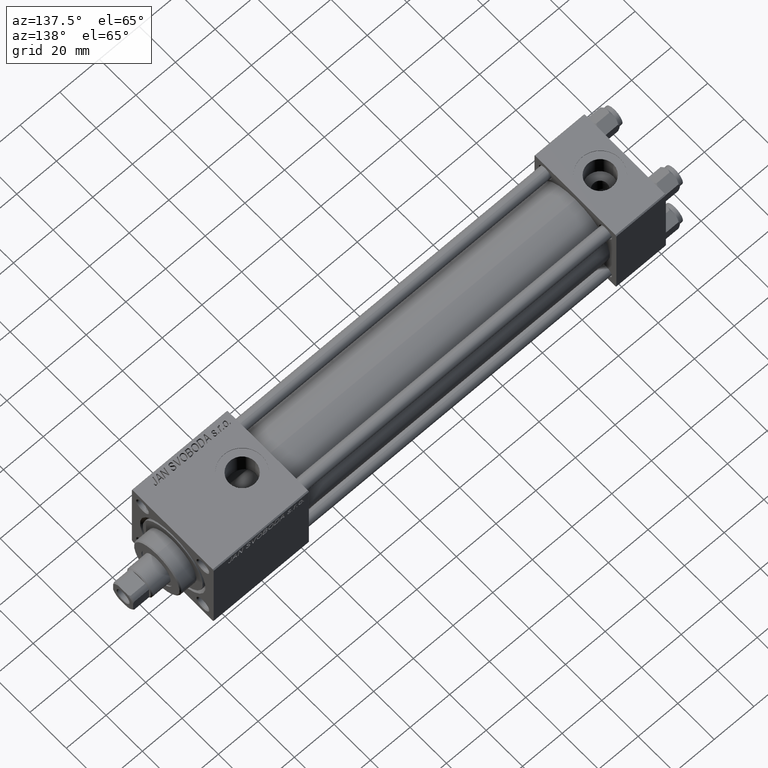
[diagram: clean part render]
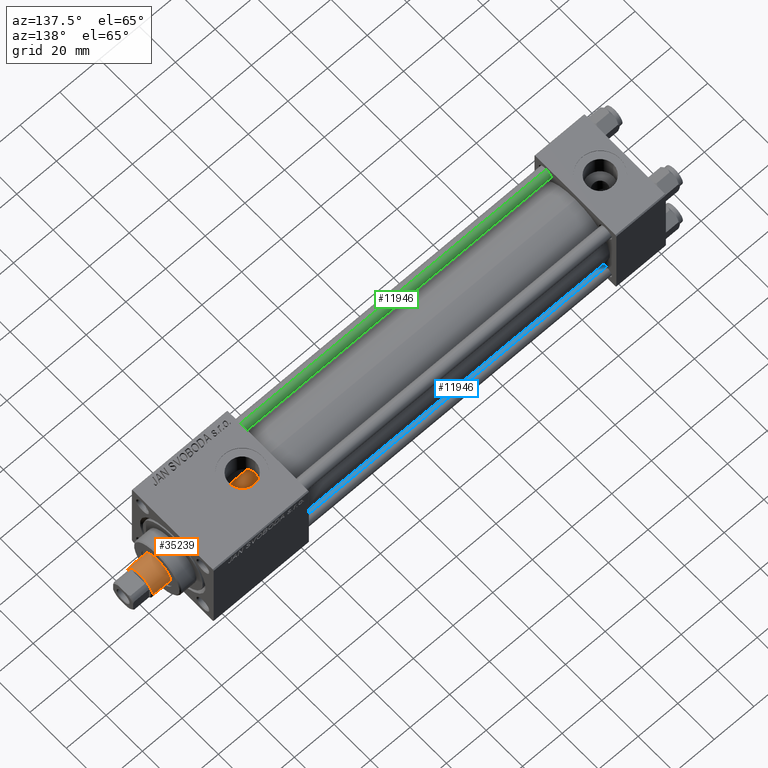
[diagram: same view with three faces highlighted in distinct colors, each labeled with its STEP entity id]
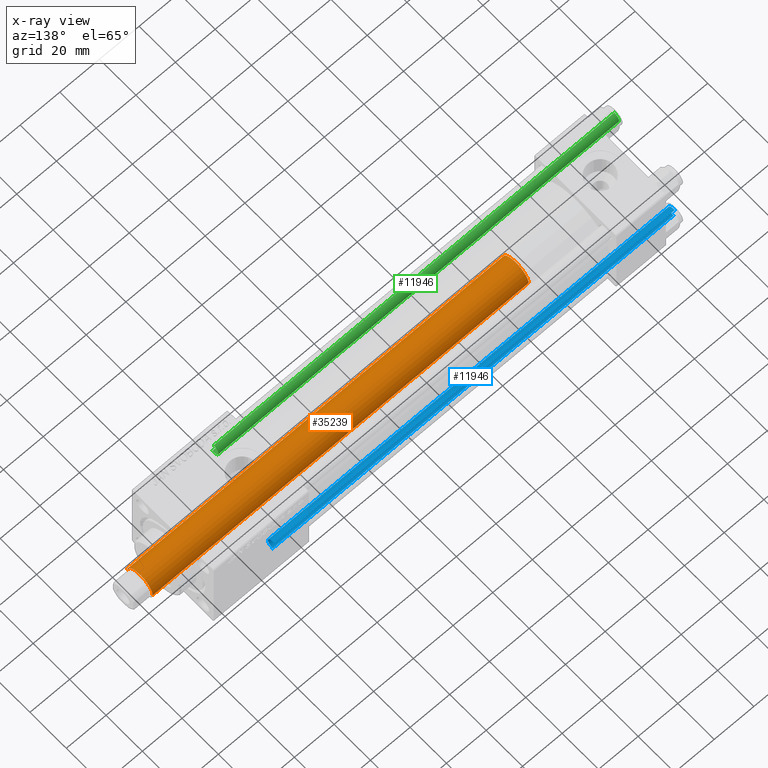
[diagram: x-ray of the same camera — body ghosted, the three highlighted faces saturated]
A machine part, auxiliary view with three faces highlighted in distinct colors.
The next image is the same camera in x-ray (body ghosted, the three faces saturated) — at least one of them is partly hidden behind the body in this view.
Their STEP definitions:

[orange] entity #35239 — the highlighted cylindrical surface (edge-blend (fillet) strip) has radius 7 mm, axis along (-1, 0, 0).
#272 = FACE_OUTER_BOUND ( 'NONE', #42955, .T. ) ;
#811 = DIRECTION ( 'NONE',  ( -0.000000000000000000, -0.000000000000000000, -1.000000000000000000 ) ) ;
#1330 = AXIS2_PLACEMENT_3D ( 'NONE', #31945, #811, #28512 ) ;
#3040 = EDGE_CURVE ( 'NONE', #14487, #27648, #37460, .T. ) ;
#3292 = VECTOR ( 'NONE', #19312, 1000.000000000000000 ) ;
#3755 = CARTESIAN_POINT ( 'NONE',  ( 7.000000000000000000, 8.572527594031473190E-16, 220.0000000000000000 ) ) ;
#4395 = ORIENTED_EDGE ( 'NONE', *, *, #3040, .T. ) ;
#4634 = EDGE_CURVE ( 'NONE', #14112, #14487, #25937, .T. ) ;
#4850 = DIRECTION ( 'NONE',  ( -0.000000000000000000, -0.000000000000000000, -1.000000000000000000 ) ) ;
#4862 = VERTEX_POINT ( 'NONE', #5301 ) ;
#5301 = CARTESIAN_POINT ( 'NONE',  ( 7.000000000000000000, 8.572527594031473190E-16, 219.4999999999999716 ) ) ;
#6480 = DIRECTION ( 'NONE',  ( 1.000000000000000000, 0.000000000000000000, 0.000000000000000000 ) ) ;
#9952 = CARTESIAN_POINT ( 'NONE',  ( 0.000000000000000000, 0.000000000000000000, 30.00000000000000000 ) ) ;
#10004 = CARTESIAN_POINT ( 'NONE',  ( 7.000000000000000000, 8.572527594031473190E-16, 30.00000000000000000 ) ) ;
#11616 = ORIENTED_EDGE ( 'NONE', *, *, #48052, .F. ) ;
#13826 = AXIS2_PLACEMENT_3D ( 'NONE', #9952, #33710, #26046 ) ;
#14112 = VERTEX_POINT ( 'NONE', #32553 ) ;
#14487 = VERTEX_POINT ( 'NONE', #24558 ) ;
#16093 = ORIENTED_EDGE ( 'NONE', *, *, #4634, .T. ) ;
#19312 = DIRECTION ( 'NONE',  ( -0.000000000000000000, -0.000000000000000000, -1.000000000000000000 ) ) ;
#23629 = CIRCLE ( 'NONE', #38838, 7.000000000000000000 ) ;
#24558 = CARTESIAN_POINT ( 'NONE',  ( -7.000000000000000000, 0.000000000000000000, 30.00000000000000000 ) ) ;
#25937 = LINE ( 'NONE', #42028, #34105 ) ;
#25971 = EDGE_CURVE ( 'NONE', #4862, #14112, #23629, .T. ) ;
#26046 = DIRECTION ( 'NONE',  ( 1.000000000000000000, 0.000000000000000000, 0.000000000000000000 ) ) ;
#27298 = DIRECTION ( 'NONE',  ( 0.000000000000000000, 0.000000000000000000, -1.000000000000000000 ) ) ;
#27648 = VERTEX_POINT ( 'NONE', #10004 ) ;
#28512 = DIRECTION ( 'NONE',  ( -1.000000000000000000, 0.000000000000000000, 0.000000000000000000 ) ) ;
#31729 = LINE ( 'NONE', #3755, #3292 ) ;
#31945 = CARTESIAN_POINT ( 'NONE',  ( 0.000000000000000000, 0.000000000000000000, 220.0000000000000000 ) ) ;
#32553 = CARTESIAN_POINT ( 'NONE',  ( -7.000000000000000000, 0.000000000000000000, 219.4999999999999716 ) ) ;
#33710 = DIRECTION ( 'NONE',  ( 0.000000000000000000, 0.000000000000000000, 1.000000000000000000 ) ) ;
#34105 = VECTOR ( 'NONE', #4850, 1000.000000000000000 ) ;
#34714 = CARTESIAN_POINT ( 'NONE',  ( 0.000000000000000000, 0.000000000000000000, 219.4999999999999716 ) ) ;
#35239 = ADVANCED_FACE ( 'NONE', ( #272 ), #36970, .T. ) ;
#36970 = CYLINDRICAL_SURFACE ( 'NONE', #1330, 7.000000000000000000 ) ;
#37460 = CIRCLE ( 'NONE', #13826, 7.000000000000000000 ) ;
#38146 = ORIENTED_EDGE ( 'NONE', *, *, #25971, .T. ) ;
#38838 = AXIS2_PLACEMENT_3D ( 'NONE', #34714, #27298, #6480 ) ;
#42028 = CARTESIAN_POINT ( 'NONE',  ( -7.000000000000000000, 0.000000000000000000, 220.0000000000000000 ) ) ;
#42955 = EDGE_LOOP ( 'NONE', ( #11616, #38146, #16093, #4395 ) ) ;
#48052 = EDGE_CURVE ( 'NONE', #4862, #27648, #31729, .T. ) ;

[blue] entity #11946 — the highlighted cylindrical surface (edge-blend (fillet) strip) has radius 3 mm, axis along (1, -0, 0).
#386 = EDGE_CURVE ( 'NONE', #22499, #6661, #30112, .T. ) ;
#1240 = ORIENTED_EDGE ( 'NONE', *, *, #386, .F. ) ;
#1415 = AXIS2_PLACEMENT_3D ( 'NONE', #24226, #27928, #47474 ) ;
#3016 = ORIENTED_EDGE ( 'NONE', *, *, #41166, .T. ) ;
#5114 = CARTESIAN_POINT ( 'NONE',  ( -3.000000000000000444, 0.000000000000000000, 0.5000000000001114664 ) ) ;
#6661 = VERTEX_POINT ( 'NONE', #13414 ) ;
#6662 = DIRECTION ( 'NONE',  ( 0.000000000000000000, 0.000000000000000000, -1.000000000000000000 ) ) ;
#7156 = DIRECTION ( 'NONE',  ( 1.000000000000000000, 0.000000000000000000, 0.000000000000000000 ) ) ;
#11068 = DIRECTION ( 'NONE',  ( -0.000000000000000000, -0.000000000000000000, -1.000000000000000000 ) ) ;
#11946 = ADVANCED_FACE ( 'NONE', ( #52204 ), #12340, .T. ) ;
#12340 = CYLINDRICAL_SURFACE ( 'NONE', #1415, 3.000000000000000444 ) ;
#12487 = EDGE_CURVE ( 'NONE', #22499, #21866, #14888, .T. ) ;
#13216 = AXIS2_PLACEMENT_3D ( 'NONE', #23519, #6662, #22745 ) ;
#13414 = CARTESIAN_POINT ( 'NONE',  ( 3.000000000000000444, 3.673940397442059868E-16, 0.5000000000001114664 ) ) ;
#13914 = VECTOR ( 'NONE', #27429, 1000.000000000000000 ) ;
#14247 = CARTESIAN_POINT ( 'NONE',  ( 3.000000000000000444, 3.673940397442059868E-16, 203.0000000000000000 ) ) ;
#14291 = DIRECTION ( 'NONE',  ( -0.000000000000000000, -0.000000000000000000, 1.000000000000000000 ) ) ;
#14888 = CIRCLE ( 'NONE', #13216, 3.000000000000000444 ) ;
#16085 = CARTESIAN_POINT ( 'NONE',  ( -3.000000000000000444, 0.000000000000000000, 202.5000000000000853 ) ) ;
#16190 = ORIENTED_EDGE ( 'NONE', *, *, #38576, .T. ) ;
#17390 = AXIS2_PLACEMENT_3D ( 'NONE', #26193, #14291, #7156 ) ;
#21866 = VERTEX_POINT ( 'NONE', #16085 ) ;
#22499 = VERTEX_POINT ( 'NONE', #50833 ) ;
#22745 = DIRECTION ( 'NONE',  ( 1.000000000000000000, 0.000000000000000000, 0.000000000000000000 ) ) ;
#23519 = CARTESIAN_POINT ( 'NONE',  ( 0.000000000000000000, 0.000000000000000000, 202.5000000000000853 ) ) ;
#24226 = CARTESIAN_POINT ( 'NONE',  ( 0.000000000000000000, 0.000000000000000000, 203.0000000000000000 ) ) ;
#25689 = EDGE_LOOP ( 'NONE', ( #1240, #42023, #16190, #3016 ) ) ;
#26193 = CARTESIAN_POINT ( 'NONE',  ( 0.000000000000000000, 0.000000000000000000, 0.5000000000001114664 ) ) ;
#27429 = DIRECTION ( 'NONE',  ( -0.000000000000000000, -0.000000000000000000, -1.000000000000000000 ) ) ;
#27928 = DIRECTION ( 'NONE',  ( -0.000000000000000000, -0.000000000000000000, -1.000000000000000000 ) ) ;
#28756 = VERTEX_POINT ( 'NONE', #5114 ) ;
#30112 = LINE ( 'NONE', #14247, #35629 ) ;
#35629 = VECTOR ( 'NONE', #11068, 1000.000000000000000 ) ;
#38576 = EDGE_CURVE ( 'NONE', #21866, #28756, #52226, .T. ) ;
#39316 = CARTESIAN_POINT ( 'NONE',  ( -3.000000000000000444, 0.000000000000000000, 203.0000000000000000 ) ) ;
#40142 = CIRCLE ( 'NONE', #17390, 3.000000000000000444 ) ;
#41166 = EDGE_CURVE ( 'NONE', #28756, #6661, #40142, .T. ) ;
#42023 = ORIENTED_EDGE ( 'NONE', *, *, #12487, .T. ) ;
#47474 = DIRECTION ( 'NONE',  ( -1.000000000000000000, 0.000000000000000000, 0.000000000000000000 ) ) ;
#50833 = CARTESIAN_POINT ( 'NONE',  ( 3.000000000000000444, 3.673940397442059868E-16, 202.5000000000000853 ) ) ;
#52204 = FACE_OUTER_BOUND ( 'NONE', #25689, .T. ) ;
#52226 = LINE ( 'NONE', #39316, #13914 ) ;

[green] entity #11946 — the highlighted cylindrical surface (edge-blend (fillet) strip) has radius 3 mm, axis along (1, 0, -0).
#386 = EDGE_CURVE ( 'NONE', #22499, #6661, #30112, .T. ) ;
#1240 = ORIENTED_EDGE ( 'NONE', *, *, #386, .F. ) ;
#1415 = AXIS2_PLACEMENT_3D ( 'NONE', #24226, #27928, #47474 ) ;
#3016 = ORIENTED_EDGE ( 'NONE', *, *, #41166, .T. ) ;
#5114 = CARTESIAN_POINT ( 'NONE',  ( -3.000000000000000444, 0.000000000000000000, 0.5000000000001114664 ) ) ;
#6661 = VERTEX_POINT ( 'NONE', #13414 ) ;
#6662 = DIRECTION ( 'NONE',  ( 0.000000000000000000, 0.000000000000000000, -1.000000000000000000 ) ) ;
#7156 = DIRECTION ( 'NONE',  ( 1.000000000000000000, 0.000000000000000000, 0.000000000000000000 ) ) ;
#11068 = DIRECTION ( 'NONE',  ( -0.000000000000000000, -0.000000000000000000, -1.000000000000000000 ) ) ;
#11946 = ADVANCED_FACE ( 'NONE', ( #52204 ), #12340, .T. ) ;
#12340 = CYLINDRICAL_SURFACE ( 'NONE', #1415, 3.000000000000000444 ) ;
#12487 = EDGE_CURVE ( 'NONE', #22499, #21866, #14888, .T. ) ;
#13216 = AXIS2_PLACEMENT_3D ( 'NONE', #23519, #6662, #22745 ) ;
#13414 = CARTESIAN_POINT ( 'NONE',  ( 3.000000000000000444, 3.673940397442059868E-16, 0.5000000000001114664 ) ) ;
#13914 = VECTOR ( 'NONE', #27429, 1000.000000000000000 ) ;
#14247 = CARTESIAN_POINT ( 'NONE',  ( 3.000000000000000444, 3.673940397442059868E-16, 203.0000000000000000 ) ) ;
#14291 = DIRECTION ( 'NONE',  ( -0.000000000000000000, -0.000000000000000000, 1.000000000000000000 ) ) ;
#14888 = CIRCLE ( 'NONE', #13216, 3.000000000000000444 ) ;
#16085 = CARTESIAN_POINT ( 'NONE',  ( -3.000000000000000444, 0.000000000000000000, 202.5000000000000853 ) ) ;
#16190 = ORIENTED_EDGE ( 'NONE', *, *, #38576, .T. ) ;
#17390 = AXIS2_PLACEMENT_3D ( 'NONE', #26193, #14291, #7156 ) ;
#21866 = VERTEX_POINT ( 'NONE', #16085 ) ;
#22499 = VERTEX_POINT ( 'NONE', #50833 ) ;
#22745 = DIRECTION ( 'NONE',  ( 1.000000000000000000, 0.000000000000000000, 0.000000000000000000 ) ) ;
#23519 = CARTESIAN_POINT ( 'NONE',  ( 0.000000000000000000, 0.000000000000000000, 202.5000000000000853 ) ) ;
#24226 = CARTESIAN_POINT ( 'NONE',  ( 0.000000000000000000, 0.000000000000000000, 203.0000000000000000 ) ) ;
#25689 = EDGE_LOOP ( 'NONE', ( #1240, #42023, #16190, #3016 ) ) ;
#26193 = CARTESIAN_POINT ( 'NONE',  ( 0.000000000000000000, 0.000000000000000000, 0.5000000000001114664 ) ) ;
#27429 = DIRECTION ( 'NONE',  ( -0.000000000000000000, -0.000000000000000000, -1.000000000000000000 ) ) ;
#27928 = DIRECTION ( 'NONE',  ( -0.000000000000000000, -0.000000000000000000, -1.000000000000000000 ) ) ;
#28756 = VERTEX_POINT ( 'NONE', #5114 ) ;
#30112 = LINE ( 'NONE', #14247, #35629 ) ;
#35629 = VECTOR ( 'NONE', #11068, 1000.000000000000000 ) ;
#38576 = EDGE_CURVE ( 'NONE', #21866, #28756, #52226, .T. ) ;
#39316 = CARTESIAN_POINT ( 'NONE',  ( -3.000000000000000444, 0.000000000000000000, 203.0000000000000000 ) ) ;
#40142 = CIRCLE ( 'NONE', #17390, 3.000000000000000444 ) ;
#41166 = EDGE_CURVE ( 'NONE', #28756, #6661, #40142, .T. ) ;
#42023 = ORIENTED_EDGE ( 'NONE', *, *, #12487, .T. ) ;
#47474 = DIRECTION ( 'NONE',  ( -1.000000000000000000, 0.000000000000000000, 0.000000000000000000 ) ) ;
#50833 = CARTESIAN_POINT ( 'NONE',  ( 3.000000000000000444, 3.673940397442059868E-16, 202.5000000000000853 ) ) ;
#52204 = FACE_OUTER_BOUND ( 'NONE', #25689, .T. ) ;
#52226 = LINE ( 'NONE', #39316, #13914 ) ;